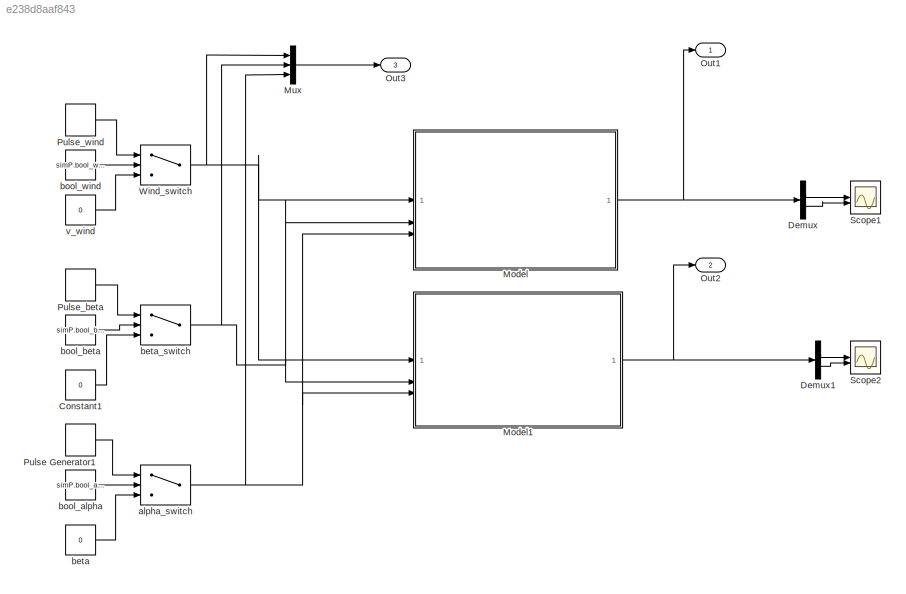
MODEL slx_e238d8aaf843
KIND model
CONFIG AbsTol = auto
CONFIG EnableMultiTasking = off
CONFIG FixedStep = auto
CONFIG MaxStep = auto
CONFIG MinStep = auto
CONFIG RelTol = 1e-3
CONFIG SampleTimeConstraint = Unconstrained
CONFIG SolverName = VariableStepAuto
CONFIG StartTime = 0.0
CONFIG StopTime = t_simulation
BLOCK [Constant] Constant1
  Value = 0
BLOCK [Demux] Demux
  Outputs = 2
BLOCK [Demux] Demux1
  Outputs = 2
BLOCK [ModelReference] Model
  ModelNameDialog = transfer_function_as_block.slx
  ModelReferenceVersion = 1.3
BLOCK [ModelReference] Model1
  ModelNameDialog = transfer_function_structured.slx
  ModelReferenceVersion = 1.1
BLOCK [Mux] Mux
  DisplayOption = bar
  Inputs = 3
BLOCK [Outport] Out1
  SignalName = transfer_as_block
BLOCK [Outport] Out2
  Port = 2
  SignalName = transfer_function_structured
BLOCK [Outport] Out3
  Port = 3
  SignalName = input_and_disturbance
BLOCK [DiscretePulseGenerator] Pulse Generator1
  Amplitude = simP.A_alpha
  Period = simP.T_period
  PhaseDelay = simP.T_delay
  PulseType = Time based
  PulseWidth = simP.pulse_width
BLOCK [DiscretePulseGenerator] Pulse_beta
  Amplitude = simP.A_beta
  Period = simP.T_period
  PhaseDelay = simP.T_delay
  PulseType = Time based
  PulseWidth = simP.pulse_width
BLOCK [DiscretePulseGenerator] Pulse_wind
  Amplitude = simP.A_wind
  Period = simP.T_period
  PhaseDelay = simP.T_delay
  PulseType = Time based
  PulseWidth = simP.pulse_width
BLOCK [Scope] Scope1
  Floating = off
  NumInputPorts = 2
  ScopeSpecificationString = Simulink.scopes.TimeScopeBlockCfg('CurrentConfiguration', extmgr.ConfigurationSet(extmgr.Configuration('Core','General UI',true),extmgr.Configuration('Core','Source UI',true),extmgr.Configuration('Sources','WiredSimulink',true,'DataLoggingVariableName','ScopeData1'),extmgr.Configuration('Visuals','Time Domain',true,'SerializedDisplays',{struct('MinYLimReal','-189135659.26822','MaxYLimReal','170222...<+2127ch>
BLOCK [Scope] Scope2
  Floating = off
  NumInputPorts = 2
  ScopeSpecificationString = Simulink.scopes.TimeScopeBlockCfg('CurrentConfiguration', extmgr.ConfigurationSet(extmgr.Configuration('Core','General UI',true),extmgr.Configuration('Core','Source UI',true),extmgr.Configuration('Sources','WiredSimulink',true,'DataLoggingVariableName','ScopeData1'),extmgr.Configuration('Visuals','Time Domain',true,'SerializedDisplays',{struct('MinYLimReal','-4.25012','MaxYLimReal','38.25112','YLa...<+2087ch>
BLOCK [Switch] Wind_switch
  Criteria = u2 > Threshold
  InputSameDT = off
  SaturateOnIntegerOverflow = off
BLOCK [Switch] alpha_switch
  Criteria = u2 > Threshold
  InputSameDT = off
  SaturateOnIntegerOverflow = off
BLOCK [Constant] beta
  Value = 0
BLOCK [Switch] beta_switch
  Criteria = u2 > Threshold
  InputSameDT = off
  SaturateOnIntegerOverflow = off
BLOCK [Constant] bool_alpha
  Value = simP.bool_alpha
BLOCK [Constant] bool_beta
  Value = simP.bool_beta
BLOCK [Constant] bool_wind
  Value = simP.bool_wind
BLOCK [Constant] v_wind
  Value = 0
LINE Constant1:1 -> beta_switch:3
LINE Demux1:1 -> Scope2:1
LINE Demux1:2 -> Scope2:2
LINE Demux:1 -> Scope1:1
LINE Demux:2 -> Scope1:2
NET Model1:1 -> Demux1:1, Out2:1
NET Model:1 -> Demux:1, Out1:1
LINE Mux:1 -> Out3:1
LINE Pulse Generator1:1 -> alpha_switch:1
LINE Pulse_beta:1 -> beta_switch:1
LINE Pulse_wind:1 -> Wind_switch:1
NET Wind_switch:1 -> Model1:1, Model:1, Mux:1
NET alpha_switch:1 -> Model1:3, Model:3, Mux:3
LINE beta:1 -> alpha_switch:3
NET beta_switch:1 -> Model1:2, Model:2, Mux:2
LINE bool_alpha:1 -> alpha_switch:2
LINE bool_beta:1 -> beta_switch:2
LINE bool_wind:1 -> Wind_switch:2
LINE v_wind:1 -> Wind_switch:3
note: NET lines group one-source signal fan-out (src -> all destinations, sorted); 1:1 wires keep LINE
